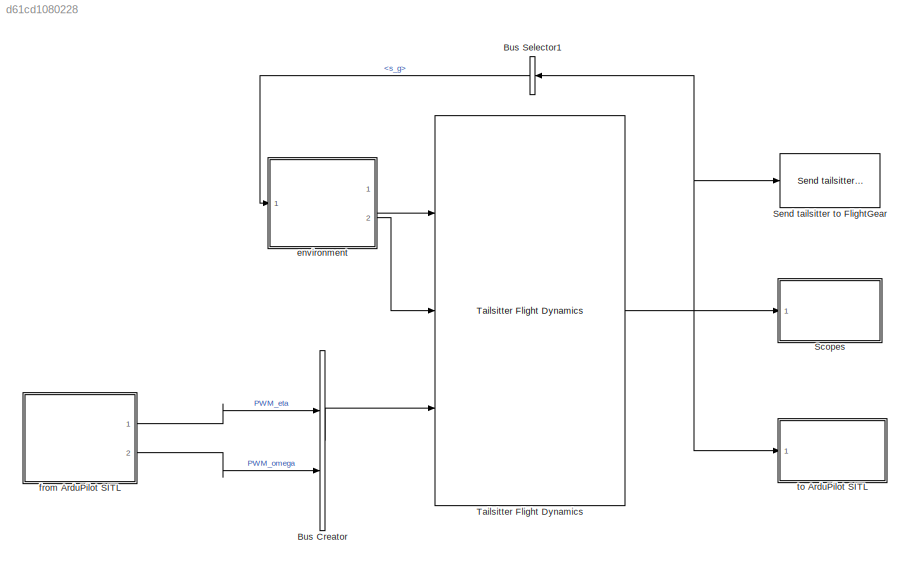
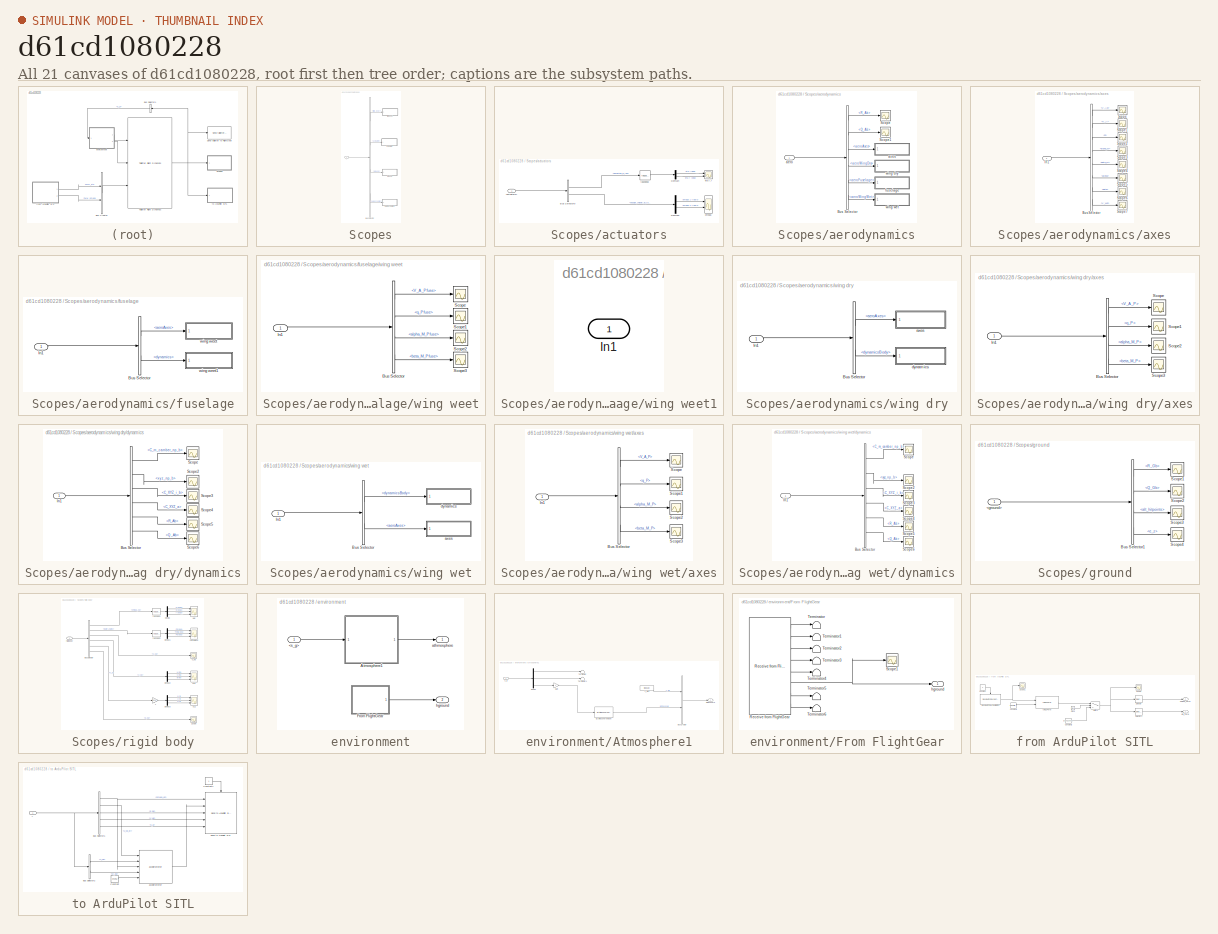
[diagram: thumbnail index - all 21 canvases of the model, root first then tree order]
MODEL slx_d61cd1080228
KIND model
CONFIG AbsTol = auto
CONFIG EnableMultiTasking = on
CONFIG FixedStep = 0.01
CONFIG MaxStep = auto
CONFIG MinStep = auto
CONFIG RelTol = 1e-4
CONFIG SampleTimeConstraint = Unconstrained
CONFIG Solver = ode23
CONFIG SolverName = ode23
CONFIG StartTime = 0
CONFIG StopTime = 1200
BLOCK [BusCreator] Bus Creator
  DisplayOption = bar
  InheritFromInputs = on
  Inputs = 2
  Ports = [2, 1]
BLOCK [BusSelector] Bus Selector1
  OutputAsBus = off
  OutputSignals = rigid_body.s_g
  Ports = [1, 1]
BLOCK [SubSystem] Scopes
  Ports = [1]
  RequestExecContextInheritance = off
BLOCK [BusSelector] Scopes/Bus Selector
  OutputAsBus = off
  OutputSignals = rigid_body,actuators,ground,aerodynamics
  Ports = [1, 4]
BLOCK [SubSystem] Scopes/actuators
  Ports = [1]
  RequestExecContextInheritance = off
BLOCK [Inport] Scopes/actuators/<actuators>
  IconDisplay = Port number
BLOCK [BusSelector] Scopes/actuators/Bus Selector9
  OutputAsBus = off
  OutputSignals = eta_i.deflection_in_rad,angular_velocity_in_rad_per_s
  Ports = [1, 2]
BLOCK [Demux] Scopes/actuators/Demux4
  DisplayOption = bar
  Outputs = 2
  Ports = [1, 2]
BLOCK [Demux] Scopes/actuators/Demux6
  DisplayOption = bar
  Outputs = 2
  Ports = [1, 2]
BLOCK [Scope] Scopes/actuators/eta l,r
  Floating = off
  NumInputPorts = 2
  Ports = [2]
  ScopeSpecificationString = Simulink.scopes.TimeScopeBlockCfg('CurrentConfiguration', extmgr.ConfigurationSet(extmgr.Configuration('Core','General UI',true),extmgr.Configuration('Core','Source UI',true),extmgr.Configuration('Sources','WiredSimulink',true,'DataLoggingVariableName','ScopeEta','DataLogging',true,'DataLoggingSaveFormat','StructureWithTime'),extmgr.Configuration('Visuals','Time Domain',true,'SerializedDisplays',{...<+1529ch>
BLOCK [Scope] Scopes/actuators/omega
  Floating = off
  NumInputPorts = 2
  Ports = [2]
  ScopeSpecificationString = Simulink.scopes.TimeScopeBlockCfg('CurrentConfiguration', extmgr.ConfigurationSet(extmgr.Configuration('Core','General UI',true),extmgr.Configuration('Core','Source UI',true),extmgr.Configuration('Sources','WiredSimulink',true,'DataLoggingVariableName','ScopeOmega','DataLogging',true,'DataLoggingSaveFormat','StructureWithTime'),extmgr.Configuration('Visuals','Time Domain',true,'SerializedDisplays'...<+1626ch>
BLOCK [Reference] Scopes/actuators/rad2deg3  REF=unit_conversions_lib/rad2deg  (lib defined in slx_ae2855d4d91e)
  Ports = [1, 1]
  SourceBlock = unit_conversions_lib/rad2deg
  SourceProductName = LADAC
BLOCK [SubSystem] Scopes/aerodynamics
  Ports = [1]
  RequestExecContextInheritance = off
BLOCK [BusSelector] Scopes/aerodynamics/Bus Selector
  OutputAsBus = off
  OutputSignals = cg aerodynamics.R_Ab,cg aerodynamics.Q_Ab,cg aerodynamics.aeroAxes,local aerodynamic.aeroWingDry,local aerodynamic.aeroFuselage,local aerodynamic.aeroWingWet
  Ports = [1, 6]
BLOCK [Scope] Scopes/aerodynamics/Scope
  Floating = off
  NumInputPorts = 1
  Ports = [1]
  ScopeSpecificationString = Simulink.scopes.TimeScopeBlockCfg('CurrentConfiguration', extmgr.ConfigurationSet(extmgr.Configuration('Core','General UI',true),extmgr.Configuration('Core','Source UI',true),extmgr.Configuration('Sources','WiredSimulink',true,'DataLoggingVariableName','ScopeData1'),extmgr.Configuration('Visuals','Time Domain',true),extmgr.Configuration('Tools','Plot Navigation',true),extmgr.Configuration('Tools',...<+40ch>
BLOCK [Scope] Scopes/aerodynamics/Scope1
  Floating = off
  NumInputPorts = 1
  Ports = [1]
  ScopeSpecificationString = Simulink.scopes.TimeScopeBlockCfg('CurrentConfiguration', extmgr.ConfigurationSet(extmgr.Configuration('Core','General UI',true),extmgr.Configuration('Core','Source UI',true),extmgr.Configuration('Sources','WiredSimulink',true,'DataLoggingVariableName','ScopeData2'),extmgr.Configuration('Visuals','Time Domain',true,'SerializedDisplays',{struct('MinYLimReal','-0.02625','MaxYLimReal','0.05792','YLab...<+1469ch>
BLOCK [Inport] Scopes/aerodynamics/aero
  IconDisplay = Port number
BLOCK [SubSystem] Scopes/aerodynamics/axes
  Ports = [1]
  RequestExecContextInheritance = off
BLOCK [BusSelector] Scopes/aerodynamics/axes/Bus Selector
  OutputAsBus = off
  OutputSignals = V_Ab,V_A,q,alpha_M,beta_M,alpha,beta,V_Wb
  Ports = [1, 8]
BLOCK [Inport] Scopes/aerodynamics/axes/In1
  IconDisplay = Port number
BLOCK [Scope] Scopes/aerodynamics/axes/Scope
  Floating = off
  NumInputPorts = 1
  Ports = [1]
  ScopeSpecificationString = Simulink.scopes.TimeScopeBlockCfg('CurrentConfiguration', extmgr.ConfigurationSet(extmgr.Configuration('Core','General UI',true),extmgr.Configuration('Core','Source UI',true),extmgr.Configuration('Sources','WiredSimulink',true,'DataLoggingVariableName','ScopeData3'),extmgr.Configuration('Visuals','Time Domain',true),extmgr.Configuration('Tools','Plot Navigation',true),extmgr.Configuration('Tools',...<+40ch>
BLOCK [Scope] Scopes/aerodynamics/axes/Scope1
  Floating = off
  NumInputPorts = 1
  Ports = [1]
  ScopeSpecificationString = Simulink.scopes.TimeScopeBlockCfg('CurrentConfiguration', extmgr.ConfigurationSet(extmgr.Configuration('Core','General UI',true),extmgr.Configuration('Core','Source UI',true),extmgr.Configuration('Sources','WiredSimulink',true,'DataLoggingVariableName','ScopeData4'),extmgr.Configuration('Visuals','Time Domain',true,'SerializedDisplays',{struct('MinYLimReal','-2.33732','MaxYLimReal','21.13584','YLa...<+1448ch>
BLOCK [Scope] Scopes/aerodynamics/axes/Scope2
  Floating = off
  NumInputPorts = 1
  Ports = [1]
  ScopeSpecificationString = Simulink.scopes.TimeScopeBlockCfg('CurrentConfiguration', extmgr.ConfigurationSet(extmgr.Configuration('Core','General UI',true),extmgr.Configuration('Core','Source UI',true),extmgr.Configuration('Sources','WiredSimulink',true,'DataLoggingVariableName','ScopeData5'),extmgr.Configuration('Visuals','Time Domain',true),extmgr.Configuration('Tools','Plot Navigation',true),extmgr.Configuration('Tools',...<+40ch>
BLOCK [Scope] Scopes/aerodynamics/axes/Scope3
  Floating = off
  NumInputPorts = 1
  Ports = [1]
  ScopeSpecificationString = Simulink.scopes.TimeScopeBlockCfg('CurrentConfiguration', extmgr.ConfigurationSet(extmgr.Configuration('Core','General UI',true),extmgr.Configuration('Core','Source UI',true),extmgr.Configuration('Sources','WiredSimulink',true,'DataLoggingVariableName','ScopeData6'),extmgr.Configuration('Visuals','Time Domain',true,'SerializedDisplays',{struct('MinYLimReal','-1.49161','MaxYLimReal','0.267','YLabel...<+1444ch>
BLOCK [Scope] Scopes/aerodynamics/axes/Scope4
  Floating = off
  NumInputPorts = 1
  Ports = [1]
  ScopeSpecificationString = Simulink.scopes.TimeScopeBlockCfg('CurrentConfiguration', extmgr.ConfigurationSet(extmgr.Configuration('Core','General UI',true),extmgr.Configuration('Core','Source UI',true),extmgr.Configuration('Sources','WiredSimulink',true,'DataLoggingVariableName','ScopeData7'),extmgr.Configuration('Visuals','Time Domain',true,'SerializedDisplays',{struct('MinYLimReal','-3.64496','MaxYLimReal','1.4306','YLabe...<+1445ch>
BLOCK [Scope] Scopes/aerodynamics/axes/Scope5
  Floating = off
  NumInputPorts = 1
  Ports = [1]
  ScopeSpecificationString = Simulink.scopes.TimeScopeBlockCfg('CurrentConfiguration', extmgr.ConfigurationSet(extmgr.Configuration('Core','General UI',true),extmgr.Configuration('Core','Source UI',true),extmgr.Configuration('Sources','WiredSimulink',true,'DataLoggingVariableName','ScopeData8'),extmgr.Configuration('Visuals','Time Domain',true),extmgr.Configuration('Tools','Plot Navigation',true),extmgr.Configuration('Tools',...<+40ch>
BLOCK [Scope] Scopes/aerodynamics/axes/Scope6
  Floating = off
  NumInputPorts = 1
  Ports = [1]
  ScopeSpecificationString = Simulink.scopes.TimeScopeBlockCfg('CurrentConfiguration', extmgr.ConfigurationSet(extmgr.Configuration('Core','General UI',true),extmgr.Configuration('Core','Source UI',true),extmgr.Configuration('Sources','WiredSimulink',true,'DataLoggingVariableName','ScopeData9'),extmgr.Configuration('Visuals','Time Domain',true),extmgr.Configuration('Tools','Plot Navigation',true),extmgr.Configuration('Tools',...<+40ch>
BLOCK [Scope] Scopes/aerodynamics/axes/Scope7
  Floating = off
  NumInputPorts = 1
  Ports = [1]
  ScopeSpecificationString = Simulink.scopes.TimeScopeBlockCfg('CurrentConfiguration', extmgr.ConfigurationSet(extmgr.Configuration('Core','General UI',true),extmgr.Configuration('Core','Source UI',true),extmgr.Configuration('Sources','WiredSimulink',true,'DataLoggingVariableName','ScopeData10'),extmgr.Configuration('Visuals','Time Domain',true),extmgr.Configuration('Tools','Plot Navigation',true),extmgr.Configuration('Tools'...<+41ch>
BLOCK [SubSystem] Scopes/aerodynamics/fuselage
  Ports = [1]
  RequestExecContextInheritance = off
BLOCK [BusSelector] Scopes/aerodynamics/fuselage/Bus Selector
  OutputAsBus = off
  OutputSignals = aeroAxes,dynamics
  Ports = [1, 2]
BLOCK [Inport] Scopes/aerodynamics/fuselage/In1
  IconDisplay = Port number
BLOCK [SubSystem] Scopes/aerodynamics/fuselage/wing weet
  Ports = [1]
  RequestExecContextInheritance = off
BLOCK [BusSelector] Scopes/aerodynamics/fuselage/wing weet/Bus Selector
  OutputAsBus = off
  OutputSignals = V_A_Pfuse,q_Pfuse,alpha_M_Pfuse,beta_M_Pfuse
  Ports = [1, 4]
BLOCK [Inport] Scopes/aerodynamics/fuselage/wing weet/In1
  IconDisplay = Port number
BLOCK [Scope] Scopes/aerodynamics/fuselage/wing weet/Scope
  Floating = off
  NumInputPorts = 1
  Ports = [1]
  ScopeSpecificationString = Simulink.scopes.TimeScopeBlockCfg('CurrentConfiguration', extmgr.ConfigurationSet(extmgr.Configuration('Core','General UI',true),extmgr.Configuration('Core','Source UI',true),extmgr.Configuration('Sources','WiredSimulink',true,'DataLoggingVariableName','ScopeData33'),extmgr.Configuration('Visuals','Time Domain',true),extmgr.Configuration('Tools','Plot Navigation',true),extmgr.Configuration('Tools'...<+41ch>
BLOCK [Scope] Scopes/aerodynamics/fuselage/wing weet/Scope1
  Floating = off
  NumInputPorts = 1
  Ports = [1]
  ScopeSpecificationString = Simulink.scopes.TimeScopeBlockCfg('CurrentConfiguration', extmgr.ConfigurationSet(extmgr.Configuration('Core','General UI',true),extmgr.Configuration('Core','Source UI',true),extmgr.Configuration('Sources','WiredSimulink',true,'DataLoggingVariableName','ScopeData34'),extmgr.Configuration('Visuals','Time Domain',true),extmgr.Configuration('Tools','Plot Navigation',true),extmgr.Configuration('Tools'...<+41ch>
BLOCK [Scope] Scopes/aerodynamics/fuselage/wing weet/Scope2
  Floating = off
  NumInputPorts = 1
  Ports = [1]
  ScopeSpecificationString = Simulink.scopes.TimeScopeBlockCfg('CurrentConfiguration', extmgr.ConfigurationSet(extmgr.Configuration('Core','General UI',true),extmgr.Configuration('Core','Source UI',true),extmgr.Configuration('Sources','WiredSimulink',true,'DataLoggingVariableName','ScopeData35'),extmgr.Configuration('Visuals','Time Domain',true),extmgr.Configuration('Tools','Plot Navigation',true),extmgr.Configuration('Tools'...<+41ch>
BLOCK [Scope] Scopes/aerodynamics/fuselage/wing weet/Scope3
  Floating = off
  NumInputPorts = 1
  Ports = [1]
  ScopeSpecificationString = Simulink.scopes.TimeScopeBlockCfg('CurrentConfiguration', extmgr.ConfigurationSet(extmgr.Configuration('Core','General UI',true),extmgr.Configuration('Core','Source UI',true),extmgr.Configuration('Sources','WiredSimulink',true,'DataLoggingVariableName','ScopeData36'),extmgr.Configuration('Visuals','Time Domain',true),extmgr.Configuration('Tools','Plot Navigation',true),extmgr.Configuration('Tools'...<+41ch>
BLOCK [SubSystem] Scopes/aerodynamics/fuselage/wing weet1
  Ports = [1]
  RequestExecContextInheritance = off
BLOCK [Inport] Scopes/aerodynamics/fuselage/wing weet1/In1
  IconDisplay = Port number
BLOCK [SubSystem] Scopes/aerodynamics/wing dry
  Ports = [1]
  RequestExecContextInheritance = off
BLOCK [BusSelector] Scopes/aerodynamics/wing dry/Bus Selector
  OutputAsBus = off
  OutputSignals = aeroAxes,dynamicsBody
  Ports = [1, 2]
BLOCK [Inport] Scopes/aerodynamics/wing dry/In1
  IconDisplay = Port number
BLOCK [SubSystem] Scopes/aerodynamics/wing dry/axes
  Ports = [1]
  RequestExecContextInheritance = off
BLOCK [BusSelector] Scopes/aerodynamics/wing dry/axes/Bus Selector
  OutputAsBus = off
  OutputSignals = V_A_P,q_P,alpha_M_P,beta_M_P
  Ports = [1, 4]
BLOCK [Inport] Scopes/aerodynamics/wing dry/axes/In1
  IconDisplay = Port number
BLOCK [Scope] Scopes/aerodynamics/wing dry/axes/Scope
  Floating = off
  NumInputPorts = 1
  Ports = [1]
  ScopeSpecificationString = Simulink.scopes.TimeScopeBlockCfg('CurrentConfiguration', extmgr.ConfigurationSet(extmgr.Configuration('Core','General UI',true),extmgr.Configuration('Core','Source UI',true),extmgr.Configuration('Sources','WiredSimulink',true,'DataLoggingVariableName','ScopeData11'),extmgr.Configuration('Visuals','Time Domain',true),extmgr.Configuration('Tools','Plot Navigation',true),extmgr.Configuration('Tools'...<+41ch>
BLOCK [Scope] Scopes/aerodynamics/wing dry/axes/Scope1
  Floating = off
  NumInputPorts = 1
  Ports = [1]
  ScopeSpecificationString = Simulink.scopes.TimeScopeBlockCfg('CurrentConfiguration', extmgr.ConfigurationSet(extmgr.Configuration('Core','General UI',true),extmgr.Configuration('Core','Source UI',true),extmgr.Configuration('Sources','WiredSimulink',true,'DataLoggingVariableName','ScopeData12'),extmgr.Configuration('Visuals','Time Domain',true,'SerializedDisplays',{struct('MinYLimReal','-27.23614','MaxYLimReal','245.12584','...<+1473ch>
BLOCK [Scope] Scopes/aerodynamics/wing dry/axes/Scope2
  Floating = off
  NumInputPorts = 1
  Ports = [1]
  ScopeSpecificationString = Simulink.scopes.TimeScopeBlockCfg('CurrentConfiguration', extmgr.ConfigurationSet(extmgr.Configuration('Core','General UI',true),extmgr.Configuration('Core','Source UI',true),extmgr.Configuration('Sources','WiredSimulink',true,'DataLoggingVariableName','ScopeData13'),extmgr.Configuration('Visuals','Time Domain',true,'SerializedDisplays',{struct('MinYLimReal','-1.24162','MaxYLimReal','0.8507','YLab...<+1479ch>
BLOCK [Scope] Scopes/aerodynamics/wing dry/axes/Scope3
  Floating = off
  NumInputPorts = 1
  Ports = [1]
  ScopeSpecificationString = Simulink.scopes.TimeScopeBlockCfg('CurrentConfiguration', extmgr.ConfigurationSet(extmgr.Configuration('Core','General UI',true),extmgr.Configuration('Core','Source UI',true),extmgr.Configuration('Sources','WiredSimulink',true,'DataLoggingVariableName','ScopeData14'),extmgr.Configuration('Visuals','Time Domain',true,'SerializedDisplays',{struct('MinYLimReal','-3.71659','MaxYLimReal','2.07513','YLa...<+1503ch>
BLOCK [SubSystem] Scopes/aerodynamics/wing dry/dynamics
  Ports = [1]
  RequestExecContextInheritance = off
BLOCK [BusSelector] Scopes/aerodynamics/wing dry/dynamics/Bus Selector
  OutputAsBus = off
  OutputSignals = C_m_camber_np_b,xyz_np_b,C_XYZ_i_b,C_XYZ_a,R_Ab,Q_Ab
  Ports = [1, 6]
BLOCK [Inport] Scopes/aerodynamics/wing dry/dynamics/In1
  IconDisplay = Port number
BLOCK [Scope] Scopes/aerodynamics/wing dry/dynamics/Scope
  Floating = off
  NumInputPorts = 1
  Ports = [1]
  ScopeSpecificationString = Simulink.scopes.TimeScopeBlockCfg('CurrentConfiguration', extmgr.ConfigurationSet(extmgr.Configuration('Core','General UI',true),extmgr.Configuration('Core','Source UI',true),extmgr.Configuration('Sources','WiredSimulink',true,'DataLoggingVariableName','ScopeData15'),extmgr.Configuration('Visuals','Time Domain',true,'SerializedDisplays',{struct('MinYLimReal','-0.0756','MaxYLimReal','0.07628','YLab...<+1472ch>
BLOCK [Scope] Scopes/aerodynamics/wing dry/dynamics/Scope2
  Floating = off
  NumInputPorts = 1
  Ports = [1]
  ScopeSpecificationString = Simulink.scopes.TimeScopeBlockCfg('CurrentConfiguration', extmgr.ConfigurationSet(extmgr.Configuration('Core','General UI',true),extmgr.Configuration('Core','Source UI',true),extmgr.Configuration('Sources','WiredSimulink',true,'DataLoggingVariableName','ScopeData17'),extmgr.Configuration('Visuals','Time Domain',true,'SerializedDisplays',{struct('MinYLimReal','-0.25','MaxYLimReal','0.25','YLabelRea...<+1539ch>
BLOCK [Scope] Scopes/aerodynamics/wing dry/dynamics/Scope3
  Floating = off
  NumInputPorts = 1
  Ports = [1]
  ScopeSpecificationString = Simulink.scopes.TimeScopeBlockCfg('CurrentConfiguration', extmgr.ConfigurationSet(extmgr.Configuration('Core','General UI',true),extmgr.Configuration('Core','Source UI',true),extmgr.Configuration('Sources','WiredSimulink',true,'DataLoggingVariableName','ScopeData18'),extmgr.Configuration('Visuals','Time Domain',true,'SerializedDisplays',{struct('MinYLimReal','-1.90209','MaxYLimReal','1.86409','YLa...<+1687ch>
BLOCK [Scope] Scopes/aerodynamics/wing dry/dynamics/Scope4
  Floating = off
  NumInputPorts = 1
  Ports = [1]
  ScopeSpecificationString = Simulink.scopes.TimeScopeBlockCfg('CurrentConfiguration', extmgr.ConfigurationSet(extmgr.Configuration('Core','General UI',true),extmgr.Configuration('Core','Source UI',true),extmgr.Configuration('Sources','WiredSimulink',true,'DataLoggingVariableName','ScopeData19'),extmgr.Configuration('Visuals','Time Domain',true,'SerializedDisplays',{struct('MinYLimReal','-1.41165','MaxYLimReal','1.20297','YLa...<+1521ch>
BLOCK [Scope] Scopes/aerodynamics/wing dry/dynamics/Scope5
  Floating = off
  NumInputPorts = 1
  Ports = [1]
  ScopeSpecificationString = Simulink.scopes.TimeScopeBlockCfg('CurrentConfiguration', extmgr.ConfigurationSet(extmgr.Configuration('Core','General UI',true),extmgr.Configuration('Core','Source UI',true),extmgr.Configuration('Sources','WiredSimulink',true,'DataLoggingVariableName','ScopeData20'),extmgr.Configuration('Visuals','Time Domain',true,'SerializedDisplays',{struct('MinYLimReal','-26.52583','MaxYLimReal','26.49284','Y...<+1495ch>
BLOCK [Scope] Scopes/aerodynamics/wing dry/dynamics/Scope6
  Floating = off
  NumInputPorts = 1
  Ports = [1]
  ScopeSpecificationString = Simulink.scopes.TimeScopeBlockCfg('CurrentConfiguration', extmgr.ConfigurationSet(extmgr.Configuration('Core','General UI',true),extmgr.Configuration('Core','Source UI',true),extmgr.Configuration('Sources','WiredSimulink',true,'DataLoggingVariableName','ScopeData21'),extmgr.Configuration('Visuals','Time Domain',true,'SerializedDisplays',{struct('MinYLimReal','-0.01526','MaxYLimReal','0.02139','YLa...<+1516ch>
BLOCK [SubSystem] Scopes/aerodynamics/wing wet
  Ports = [1]
  RequestExecContextInheritance = off
BLOCK [BusSelector] Scopes/aerodynamics/wing wet/Bus Selector
  OutputAsBus = off
  OutputSignals = dynamicsBody,aeroAxes
  Ports = [1, 2]
BLOCK [Inport] Scopes/aerodynamics/wing wet/In1
  IconDisplay = Port number
BLOCK [SubSystem] Scopes/aerodynamics/wing wet/axes
  Ports = [1]
  RequestExecContextInheritance = off
BLOCK [BusSelector] Scopes/aerodynamics/wing wet/axes/Bus Selector
  OutputAsBus = off
  OutputSignals = V_A_P,q_P,alpha_M_P,beta_M_P
  Ports = [1, 4]
BLOCK [Inport] Scopes/aerodynamics/wing wet/axes/In1
  IconDisplay = Port number
BLOCK [Scope] Scopes/aerodynamics/wing wet/axes/Scope
  Floating = off
  NumInputPorts = 1
  Ports = [1]
  ScopeSpecificationString = Simulink.scopes.TimeScopeBlockCfg('CurrentConfiguration', extmgr.ConfigurationSet(extmgr.Configuration('Core','General UI',true),extmgr.Configuration('Core','Source UI',true),extmgr.Configuration('Sources','WiredSimulink',true,'DataLoggingVariableName','ScopeData22'),extmgr.Configuration('Visuals','Time Domain',true,'SerializedDisplays',{struct('MinYLimReal','-4.99035','MaxYLimReal','45.01311','YL...<+1490ch>
BLOCK [Scope] Scopes/aerodynamics/wing wet/axes/Scope1
  Floating = off
  NumInputPorts = 1
  Ports = [1]
  ScopeSpecificationString = Simulink.scopes.TimeScopeBlockCfg('CurrentConfiguration', extmgr.ConfigurationSet(extmgr.Configuration('Core','General UI',true),extmgr.Configuration('Core','Source UI',true),extmgr.Configuration('Sources','WiredSimulink',true,'DataLoggingVariableName','ScopeData23'),extmgr.Configuration('Visuals','Time Domain',true,'SerializedDisplays',{struct('MinYLimReal','-205.62769','MaxYLimReal','1850.64984'...<+1481ch>
BLOCK [Scope] Scopes/aerodynamics/wing wet/axes/Scope2
  Floating = off
  NumInputPorts = 1
  Ports = [1]
  ScopeSpecificationString = Simulink.scopes.TimeScopeBlockCfg('CurrentConfiguration', extmgr.ConfigurationSet(extmgr.Configuration('Core','General UI',true),extmgr.Configuration('Core','Source UI',true),extmgr.Configuration('Sources','WiredSimulink',true,'DataLoggingVariableName','ScopeData24'),extmgr.Configuration('Visuals','Time Domain',true,'SerializedDisplays',{struct('MinYLimReal','-0.1538','MaxYLimReal','0.21391','YLab...<+1503ch>
BLOCK [Scope] Scopes/aerodynamics/wing wet/axes/Scope3
  Floating = off
  NumInputPorts = 1
  Ports = [1]
  ScopeSpecificationString = Simulink.scopes.TimeScopeBlockCfg('CurrentConfiguration', extmgr.ConfigurationSet(extmgr.Configuration('Core','General UI',true),extmgr.Configuration('Core','Source UI',true),extmgr.Configuration('Sources','WiredSimulink',true,'DataLoggingVariableName','ScopeData25'),extmgr.Configuration('Visuals','Time Domain',true,'SerializedDisplays',{struct('MinYLimReal','-3.61249','MaxYLimReal','1.11592','YLa...<+1484ch>
BLOCK [SubSystem] Scopes/aerodynamics/wing wet/dynamics
  Ports = [1]
  RequestExecContextInheritance = off
BLOCK [BusSelector] Scopes/aerodynamics/wing wet/dynamics/Bus Selector
  OutputAsBus = off
  OutputSignals = C_m_camber_np_b,xyz_np_b,C_XYZ_i_b,C_XYZ_a,R_Ab,Q_Ab
  Ports = [1, 6]
BLOCK [Inport] Scopes/aerodynamics/wing wet/dynamics/In1
  IconDisplay = Port number
BLOCK [Scope] Scopes/aerodynamics/wing wet/dynamics/Scope
  Floating = off
  NumInputPorts = 1
  Ports = [1]
  ScopeSpecificationString = Simulink.scopes.TimeScopeBlockCfg('CurrentConfiguration', extmgr.ConfigurationSet(extmgr.Configuration('Core','General UI',true),extmgr.Configuration('Core','Source UI',true),extmgr.Configuration('Sources','WiredSimulink',true,'DataLoggingVariableName','ScopeData26'),extmgr.Configuration('Visuals','Time Domain',true,'SerializedDisplays',{struct('MinYLimReal','-0.07689','MaxYLimReal','0.07665','YLa...<+1474ch>
BLOCK [Scope] Scopes/aerodynamics/wing wet/dynamics/Scope2
  Floating = off
  NumInputPorts = 1
  Ports = [1]
  ScopeSpecificationString = Simulink.scopes.TimeScopeBlockCfg('CurrentConfiguration', extmgr.ConfigurationSet(extmgr.Configuration('Core','General UI',true),extmgr.Configuration('Core','Source UI',true),extmgr.Configuration('Sources','WiredSimulink',true,'DataLoggingVariableName','ScopeData28'),extmgr.Configuration('Visuals','Time Domain',true,'SerializedDisplays',{struct('MinYLimReal','-0.25','MaxYLimReal','0.25','YLabelRea...<+1528ch>
BLOCK [Scope] Scopes/aerodynamics/wing wet/dynamics/Scope3
  Floating = off
  NumInputPorts = 1
  Ports = [1]
  ScopeSpecificationString = Simulink.scopes.TimeScopeBlockCfg('CurrentConfiguration', extmgr.ConfigurationSet(extmgr.Configuration('Core','General UI',true),extmgr.Configuration('Core','Source UI',true),extmgr.Configuration('Sources','WiredSimulink',true,'DataLoggingVariableName','ScopeData29'),extmgr.Configuration('Visuals','Time Domain',true,'SerializedDisplays',{struct('MinYLimReal','-0.99924','MaxYLimReal','0.73023','YLa...<+1563ch>
BLOCK [Scope] Scopes/aerodynamics/wing wet/dynamics/Scope4
  Floating = off
  NumInputPorts = 1
  Ports = [1]
  ScopeSpecificationString = Simulink.scopes.TimeScopeBlockCfg('CurrentConfiguration', extmgr.ConfigurationSet(extmgr.Configuration('Core','General UI',true),extmgr.Configuration('Core','Source UI',true),extmgr.Configuration('Sources','WiredSimulink',true,'DataLoggingVariableName','ScopeData30'),extmgr.Configuration('Visuals','Time Domain',true),extmgr.Configuration('Tools','Plot Navigation',true),extmgr.Configuration('Tools'...<+41ch>
BLOCK [Scope] Scopes/aerodynamics/wing wet/dynamics/Scope5
  Floating = off
  NumInputPorts = 1
  Ports = [1]
  ScopeSpecificationString = Simulink.scopes.TimeScopeBlockCfg('CurrentConfiguration', extmgr.ConfigurationSet(extmgr.Configuration('Core','General UI',true),extmgr.Configuration('Core','Source UI',true),extmgr.Configuration('Sources','WiredSimulink',true,'DataLoggingVariableName','ScopeData31'),extmgr.Configuration('Visuals','Time Domain',true,'SerializedDisplays',{struct('MinYLimReal','-0.28527','MaxYLimReal','0.1656','YLab...<+1468ch>
BLOCK [Scope] Scopes/aerodynamics/wing wet/dynamics/Scope6
  Floating = off
  NumInputPorts = 1
  Ports = [1]
  ScopeSpecificationString = Simulink.scopes.TimeScopeBlockCfg('CurrentConfiguration', extmgr.ConfigurationSet(extmgr.Configuration('Core','General UI',true),extmgr.Configuration('Core','Source UI',true),extmgr.Configuration('Sources','WiredSimulink',true,'DataLoggingVariableName','ScopeData32'),extmgr.Configuration('Visuals','Time Domain',true,'SerializedDisplays',{struct('MinYLimReal','-0.00864','MaxYLimReal','0.0145','YLab...<+1497ch>
BLOCK [SubSystem] Scopes/ground
  Ports = [1]
  RequestExecContextInheritance = off
BLOCK [Inport] Scopes/ground/<ground>
  IconDisplay = Port number
BLOCK [BusSelector] Scopes/ground/Bus Selector1
  Commented = on
  OutputAsBus = off
  OutputSignals = R_Gb,Q_Gb,alt_hitpoints,e_z
  Ports = [1, 4]
BLOCK [Scope] Scopes/ground/Scope1
  Commented = on
  Floating = off
  NumInputPorts = 1
  Ports = [1]
  ScopeSpecificationString = Simulink.scopes.TimeScopeBlockCfg('CurrentConfiguration', extmgr.ConfigurationSet(extmgr.Configuration('Core','General UI',true),extmgr.Configuration('Core','Source UI',true),extmgr.Configuration('Sources','WiredSimulink',true,'DataLoggingVariableName','ScopeData6'),extmgr.Configuration('Visuals','Time Domain',true),extmgr.Configuration('Tools','Plot Navigation',true),extmgr.Configuration('Tools',...<+40ch>
BLOCK [Scope] Scopes/ground/Scope2
  Commented = on
  Floating = off
  NumInputPorts = 1
  Ports = [1]
  ScopeSpecificationString = Simulink.scopes.TimeScopeBlockCfg('CurrentConfiguration', extmgr.ConfigurationSet(extmgr.Configuration('Core','General UI',true),extmgr.Configuration('Core','Source UI',true),extmgr.Configuration('Sources','WiredSimulink',true,'DataLoggingVariableName','ScopeData7'),extmgr.Configuration('Visuals','Time Domain',true),extmgr.Configuration('Tools','Plot Navigation',true),extmgr.Configuration('Tools',...<+40ch>
BLOCK [Scope] Scopes/ground/Scope3
  Commented = on
  Floating = off
  NumInputPorts = 1
  Ports = [1]
  ScopeSpecificationString = Simulink.scopes.TimeScopeBlockCfg('CurrentConfiguration', extmgr.ConfigurationSet(extmgr.Configuration('Core','General UI',true),extmgr.Configuration('Core','Source UI',true),extmgr.Configuration('Sources','WiredSimulink',true,'DataLoggingVariableName','ScopeData8'),extmgr.Configuration('Visuals','Time Domain',true,'SerializedDisplays',{struct('MinYLimReal','-0.11268','MaxYLimReal','0.57088','YLab...<+1616ch>
BLOCK [Scope] Scopes/ground/Scope4
  Commented = on
  Floating = off
  NumInputPorts = 1
  Ports = [1]
  ScopeSpecificationString = Simulink.scopes.TimeScopeBlockCfg('CurrentConfiguration', extmgr.ConfigurationSet(extmgr.Configuration('Core','General UI',true),extmgr.Configuration('Core','Source UI',true),extmgr.Configuration('Sources','WiredSimulink',true,'DataLoggingVariableName','ScopeData9'),extmgr.Configuration('Visuals','Time Domain',true,'SerializedDisplays',{struct('MinYLimReal','-0.00094','MaxYLimReal','0.0085','YLabe...<+1552ch>
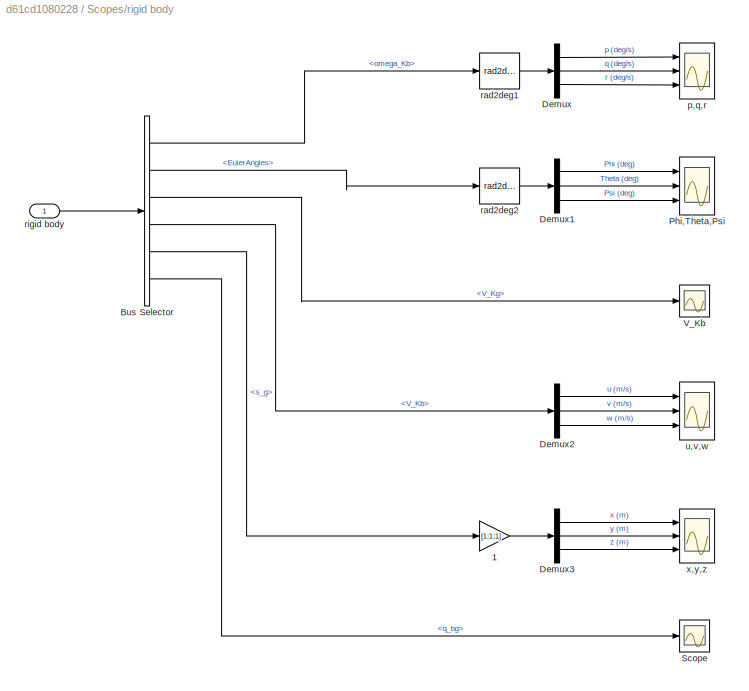
BLOCK [SubSystem] Scopes/rigid body
  Ports = [1]
  RequestExecContextInheritance = off
BLOCK [Gain] Scopes/rigid body/1
  Gain = [1;1;1]
  OutDataTypeStr = Inherit: Inherit via internal rule
  ParamDataTypeStr = Inherit: Inherit via internal rule
  SaturateOnIntegerOverflow = off
BLOCK [BusSelector] Scopes/rigid body/Bus Selector
  OutputAsBus = off
  OutputSignals = omega_Kb,EulerAngles,V_Kg,V_Kb,s_g,q_bg
  Ports = [1, 6]
BLOCK [Demux] Scopes/rigid body/Demux
  DisplayOption = bar
  Outputs = 3
  Ports = [1, 3]
BLOCK [Demux] Scopes/rigid body/Demux1
  DisplayOption = bar
  Outputs = 3
  Ports = [1, 3]
BLOCK [Demux] Scopes/rigid body/Demux2
  DisplayOption = bar
  Outputs = 3
  Ports = [1, 3]
BLOCK [Demux] Scopes/rigid body/Demux3
  DisplayOption = bar
  Outputs = 3
  Ports = [1, 3]
BLOCK [Scope] Scopes/rigid body/Phi,Theta,Psi
  Floating = off
  NumInputPorts = 3
  Ports = [3]
  ScopeSpecificationString = Simulink.scopes.TimeScopeBlockCfg('CurrentConfiguration', extmgr.ConfigurationSet(extmgr.Configuration('Core','General UI',true),extmgr.Configuration('Core','Source UI',true),extmgr.Configuration('Sources','WiredSimulink',true,'DataLoggingVariableName','ScopeAngles','DataLogging',true,'DataLoggingSaveFormat','StructureWithTime'),extmgr.Configuration('Visuals','Time Domain',true,'SerializedDisplays...<+1932ch>
BLOCK [Scope] Scopes/rigid body/Scope
  Floating = off
  NumInputPorts = 1
  Ports = [1]
  ScopeSpecificationString = Simulink.scopes.TimeScopeBlockCfg('CurrentConfiguration', extmgr.ConfigurationSet(extmgr.Configuration('Core','General UI',true),extmgr.Configuration('Core','Source UI',true),extmgr.Configuration('Sources','WiredSimulink',true,'DataLoggingVariableName','ScopeData1'),extmgr.Configuration('Visuals','Time Domain',true,'SerializedDisplays',{struct('MinYLimReal','-1.19411','MaxYLimReal','1.24363','YLab...<+1445ch>
BLOCK [Scope] Scopes/rigid body/V_Kb
  Floating = off
  NumInputPorts = 1
  Ports = [1]
  ScopeSpecificationString = Simulink.scopes.TimeScopeBlockCfg('CurrentConfiguration', extmgr.ConfigurationSet(extmgr.Configuration('Core','General UI',true),extmgr.Configuration('Core','Source UI',true),extmgr.Configuration('Sources','WiredSimulink',true,'DataLoggingVariableName','ScopeData1'),extmgr.Configuration('Visuals','Time Domain',true,'SerializedDisplays',{struct('MinYLimReal','-7.43743','MaxYLimReal','11.1093','YLab...<+1497ch>
BLOCK [Scope] Scopes/rigid body/p,q,r
  Floating = off
  NumInputPorts = 3
  Ports = [3]
  ScopeSpecificationString = Simulink.scopes.TimeScopeBlockCfg('CurrentConfiguration', extmgr.ConfigurationSet(extmgr.Configuration('Core','General UI',true),extmgr.Configuration('Core','Source UI',true),extmgr.Configuration('Sources','WiredSimulink',true,'DataLogging',true,'DataLoggingVariableName','ScopeRates','DataLoggingSaveFormat','StructureWithTime'),extmgr.Configuration('Visuals','Time Domain',true,'SerializedDisplays'...<+1686ch>
BLOCK [Reference] Scopes/rigid body/rad2deg1  REF=unit_conversions_lib/rad2deg  (lib defined in slx_ae2855d4d91e)
  Ports = [1, 1]
  SourceBlock = unit_conversions_lib/rad2deg
  SourceProductName = LADAC
BLOCK [Reference] Scopes/rigid body/rad2deg2  REF=unit_conversions_lib/rad2deg  (lib defined in slx_ae2855d4d91e)
  Ports = [1, 1]
  SourceBlock = unit_conversions_lib/rad2deg
  SourceProductName = LADAC
BLOCK [Inport] Scopes/rigid body/rigid body
  IconDisplay = Port number
BLOCK [Scope] Scopes/rigid body/u,v,w
  Floating = off
  NumInputPorts = 3
  Ports = [3]
  ScopeSpecificationString = Simulink.scopes.TimeScopeBlockCfg('CurrentConfiguration', extmgr.ConfigurationSet(extmgr.Configuration('Core','General UI',true),extmgr.Configuration('Core','Source UI',true),extmgr.Configuration('Sources','WiredSimulink',true,'DataLoggingVariableName','ScopeV_Kg','DataLogging',true,'DataLoggingSaveFormat','StructureWithTime'),extmgr.Configuration('Visuals','Time Domain',true,'SerializedDisplays',...<+1564ch>
BLOCK [Scope] Scopes/rigid body/x,y,z
  Floating = off
  NumInputPorts = 3
  Ports = [3]
  ScopeSpecificationString = Simulink.scopes.TimeScopeBlockCfg('CurrentConfiguration', extmgr.ConfigurationSet(extmgr.Configuration('Core','General UI',true),extmgr.Configuration('Core','Source UI',true),extmgr.Configuration('Sources','WiredSimulink',true,'DataLoggingVariableName','ScopePosition','DataLogging',true,'DataLoggingSaveFormat','StructureWithTime'),extmgr.Configuration('Visuals','Time Domain',true,'SerializedDispla...<+1575ch>
BLOCK [Inport] Scopes/y
  IconDisplay = Port number
BLOCK [Reference] Send tailsitter to FlightGear  REF=tailsitter_lib/Send tailsitter to FlightGear  (lib defined in slx_84bbf5c517da)
  Ports = [1]
  SourceBlock = tailsitter_lib/Send tailsitter to FlightGear
  SourceProductName = LADAC
BLOCK [Reference] Tailsitter Flight Dynamics  REF=tailsitter_lib/Tailsitter Flight Dynamics  (lib defined in slx_84bbf5c517da)
  Ports = [3, 1]
  SourceBlock = tailsitter_lib/Tailsitter Flight Dynamics
  SourceProductName = LADAC
BLOCK [SubSystem] environment
  Ports = [1, 2]
  RequestExecContextInheritance = off
BLOCK [Inport] environment/<s_g>
  IconDisplay = Port number
BLOCK [SubSystem] environment/Atmosphere1
  Ports = [1, 1]
  RequestExecContextInheritance = off
BLOCK [BusCreator] environment/Atmosphere1/Bus Creator
  DisplayOption = bar
  InheritFromInputs = on
  Inputs = 2
  Ports = [2, 1]
BLOCK [Demux] environment/Atmosphere1/Demux
  DisplayOption = bar
  Outputs = 3
  Ports = [1, 3]
BLOCK [Gain] environment/Atmosphere1/Gain
  Gain = -1
  OutDataTypeStr = Inherit: Inherit via internal rule
  ParamDataTypeStr = Inherit: Inherit via internal rule
  SaturateOnIntegerOverflow = off
BLOCK [Reference] environment/Atmosphere1/ISA Atmosphere Model  REF=atmosphere_lib/ISA Atmosphere Model  (lib defined in slx_398a0eb2fa35)
  Ports = [1, 1]
  SourceBlock = atmosphere_lib/ISA Atmosphere Model
  SourceProductName = LADAC
  SourceType = SubSystem
BLOCK [Terminator] environment/Atmosphere1/Terminator
BLOCK [Terminator] environment/Atmosphere1/Terminator1
BLOCK [Constant] environment/Atmosphere1/V_Wg2
  Value = [0;0.01;0]
BLOCK [Outport] environment/Atmosphere1/atmosphere
  IconDisplay = Port number
BLOCK [Inport] environment/Atmosphere1/s_g
  IconDisplay = Port number
BLOCK [SubSystem] environment/From FlightGear
  Ports = [0, 1]
  RequestExecContextInheritance = off
BLOCK [Reference] environment/From FlightGear/Receive from FlightGear  REF=flightgear_visualization_lib/Receive from FlightGear  (lib defined in slx_722f04e3a3fc)
  Ports = [0, 8]
  SourceBlock = flightgear_visualization_lib/Receive from FlightGear
  SourceProductName = LADAC
BLOCK [Scope] environment/From FlightGear/Scope1
  Floating = off
  NumInputPorts = 1
  Ports = [1]
  ScopeSpecificationString = Simulink.scopes.TimeScopeBlockCfg('CurrentConfiguration', extmgr.ConfigurationSet(extmgr.Configuration('Core','General UI',true),extmgr.Configuration('Core','Source UI',true),extmgr.Configuration('Sources','WiredSimulink',true,'DataLoggingVariableName','ScopeData6'),extmgr.Configuration('Visuals','Time Domain',true,'SerializedDisplays',{struct('MinYLimReal','4.81965','MaxYLimReal','6.85539','YLabe...<+1507ch>
BLOCK [Terminator] environment/From FlightGear/Terminator
BLOCK [Terminator] environment/From FlightGear/Terminator1
BLOCK [Terminator] environment/From FlightGear/Terminator2
BLOCK [Terminator] environment/From FlightGear/Terminator3
BLOCK [Terminator] environment/From FlightGear/Terminator4
BLOCK [Terminator] environment/From FlightGear/Terminator5
BLOCK [Terminator] environment/From FlightGear/Terminator6
BLOCK [Outport] environment/From FlightGear/hground
  IconDisplay = Port number
BLOCK [Outport] environment/athmosphere
  IconDisplay = Port number
BLOCK [Outport] environment/hground
  IconDisplay = Port number
  Port = 2
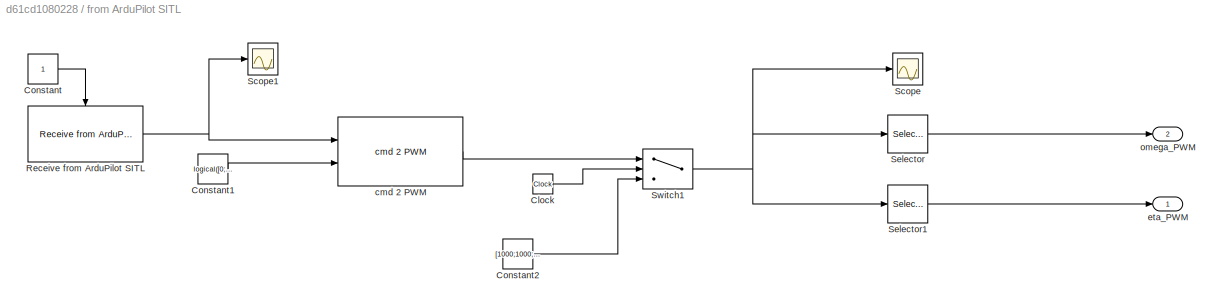
BLOCK [SubSystem] from ArduPilot SITL
  Ports = [0, 2]
  RequestExecContextInheritance = off
BLOCK [Clock] from ArduPilot SITL/Clock
BLOCK [Constant] from ArduPilot SITL/Constant
  OutDataTypeStr = boolean
BLOCK [Constant] from ArduPilot SITL/Constant1
  Value = logical([0;0;0;1])
BLOCK [Constant] from ArduPilot SITL/Constant2
  Value = [1000;1000;1500;1500]
BLOCK [Reference] from ArduPilot SITL/Receive from ArduPilot SITL  REF=ardupilot_sitl_lib/Receive from ArduPilot SITL  (lib defined in slx_448b01335727)
  Ports = [0, 1, 1]
  SourceBlock = ardupilot_sitl_lib/Receive from ArduPilot SITL
  SourceProductName = LADAC
BLOCK [Scope] from ArduPilot SITL/Scope
  Floating = off
  NumInputPorts = 1
  Ports = [1]
  ScopeSpecificationString = Simulink.scopes.TimeScopeBlockCfg('CurrentConfiguration', extmgr.ConfigurationSet(extmgr.Configuration('Core','General UI',true),extmgr.Configuration('Core','Source UI',true),extmgr.Configuration('Sources','WiredSimulink',true,'DataLoggingVariableName','ScopeData1'),extmgr.Configuration('Visuals','Time Domain',true,'SerializedDisplays',{struct('MinYLimReal','875.00000','MaxYLimReal','2125.00000','...<+1645ch>
BLOCK [Scope] from ArduPilot SITL/Scope1
  Floating = off
  NumInputPorts = 1
  Ports = [1]
  ScopeSpecificationString = Simulink.scopes.TimeScopeBlockCfg('CurrentConfiguration', extmgr.ConfigurationSet(extmgr.Configuration('Core','General UI',true),extmgr.Configuration('Core','Source UI',true),extmgr.Configuration('Sources','WiredSimulink',true,'DataLoggingVariableName','ScopeData1'),extmgr.Configuration('Visuals','Time Domain',true,'SerializedDisplays',{struct('MinYLimReal','-0.08125','MaxYLimReal','0.73125','YLab...<+1598ch>
BLOCK [Selector] from ArduPilot SITL/Selector
  IndexOptions = Index vector (dialog)
  Indices = [1,2]
  InputPortWidth = 4
  OutputSizes = 1
  Ports = [1, 1]
BLOCK [Selector] from ArduPilot SITL/Selector1
  IndexOptions = Index vector (dialog)
  Indices = [3,4]
  InputPortWidth = 4
  OutputSizes = 1
  Ports = [1, 1]
BLOCK [Switch] from ArduPilot SITL/Switch1
  Criteria = u2 > Threshold
  InputSameDT = off
  SaturateOnIntegerOverflow = off
  Threshold = 15
BLOCK [Reference] from ArduPilot SITL/cmd 2 PWM  REF=actuators_lib/cmd 2 PWM  (lib defined in slx_c2decc952d1f)
  Ports = [2, 1]
  SourceBlock = actuators_lib/cmd 2 PWM
  SourceProductName = LADAC
  SourceType = SubSystem
BLOCK [Outport] from ArduPilot SITL/eta_PWM
  IconDisplay = Port number
BLOCK [Outport] from ArduPilot SITL/omega_PWM
  IconDisplay = Port number
  Port = 2
BLOCK [SubSystem] to ArduPilot SITL
  Ports = [1]
  RequestExecContextInheritance = off
BLOCK [BusSelector] to ArduPilot SITL/Bus Selector1
  OutputAsBus = off
  OutputSignals = rigid_body.omega_Kb,rigid_body.V_Kb_dt,rigid_body.q_bg,rigid_body.V_Kg,rigid_body.s_g
  Ports = [1, 5]
BLOCK [BusSelector] to ArduPilot SITL/Bus Selector2
  OutputAsBus = off
  OutputSignals = rigid_body.V_Kb,rigid_body.M_bg
  Ports = [1, 2]
BLOCK [Constant] to ArduPilot SITL/Constant
  Value = envir.g
BLOCK [Constant] to ArduPilot SITL/Constant1
  OutDataTypeStr = boolean
BLOCK [Reference] to ArduPilot SITL/Send to ArduPilot SITL  REF=ardupilot_sitl_lib/Send to ArduPilot SITL  (lib defined in slx_448b01335727)
  Ports = [5, 0, 1]
  SourceBlock = ardupilot_sitl_lib/Send to ArduPilot SITL
  SourceProductName = LADAC
BLOCK [Reference] to ArduPilot SITL/accelerometer  REF=sensors_lib/accelerometer  (lib defined in mdl_052e9be48c24, mdl_88e42053cf8c, +1 more)
  Ports = [5, 1]
  SourceBlock = sensors_lib/accelerometer
  SourceProductName = LADAC
  SourceType = SubSystem
BLOCK [Inport] to ArduPilot SITL/y
  IconDisplay = Port number
LINE Bus Creator:1 -> Tailsitter Flight Dynamics:3
LINE Bus Selector1:1 -> environment:1
LINE Scopes/Bus Selector:1 -> Scopes/rigid body:1
LINE Scopes/Bus Selector:2 -> Scopes/actuators:1
LINE Scopes/Bus Selector:3 -> Scopes/ground:1
LINE Scopes/Bus Selector:4 -> Scopes/aerodynamics:1
LINE Scopes/actuators/<actuators>:1 -> Scopes/actuators/Bus Selector9:1
LINE Scopes/actuators/Bus Selector9:1 -> Scopes/actuators/rad2deg3:1
LINE Scopes/actuators/Bus Selector9:2 -> Scopes/actuators/Demux6:1
LINE Scopes/actuators/Demux4:1 -> Scopes/actuators/eta l,r:1
LINE Scopes/actuators/Demux4:2 -> Scopes/actuators/eta l,r:2
LINE Scopes/actuators/Demux6:1 -> Scopes/actuators/omega:1
LINE Scopes/actuators/Demux6:2 -> Scopes/actuators/omega:2
LINE Scopes/actuators/rad2deg3:1 -> Scopes/actuators/Demux4:1
LINE Scopes/aerodynamics/Bus Selector:1 -> Scopes/aerodynamics/Scope:1
LINE Scopes/aerodynamics/Bus Selector:2 -> Scopes/aerodynamics/Scope1:1
LINE Scopes/aerodynamics/Bus Selector:3 -> Scopes/aerodynamics/axes:1
LINE Scopes/aerodynamics/Bus Selector:4 -> Scopes/aerodynamics/wing dry:1
LINE Scopes/aerodynamics/Bus Selector:5 -> Scopes/aerodynamics/fuselage:1
LINE Scopes/aerodynamics/Bus Selector:6 -> Scopes/aerodynamics/wing wet:1
LINE Scopes/aerodynamics/aero:1 -> Scopes/aerodynamics/Bus Selector:1
LINE Scopes/aerodynamics/axes/Bus Selector:1 -> Scopes/aerodynamics/axes/Scope:1
LINE Scopes/aerodynamics/axes/Bus Selector:2 -> Scopes/aerodynamics/axes/Scope1:1
LINE Scopes/aerodynamics/axes/Bus Selector:3 -> Scopes/aerodynamics/axes/Scope2:1
LINE Scopes/aerodynamics/axes/Bus Selector:4 -> Scopes/aerodynamics/axes/Scope3:1
LINE Scopes/aerodynamics/axes/Bus Selector:5 -> Scopes/aerodynamics/axes/Scope4:1
LINE Scopes/aerodynamics/axes/Bus Selector:6 -> Scopes/aerodynamics/axes/Scope5:1
LINE Scopes/aerodynamics/axes/Bus Selector:7 -> Scopes/aerodynamics/axes/Scope6:1
LINE Scopes/aerodynamics/axes/Bus Selector:8 -> Scopes/aerodynamics/axes/Scope7:1
LINE Scopes/aerodynamics/axes/In1:1 -> Scopes/aerodynamics/axes/Bus Selector:1
LINE Scopes/aerodynamics/fuselage/Bus Selector:1 -> Scopes/aerodynamics/fuselage/wing weet:1
LINE Scopes/aerodynamics/fuselage/Bus Selector:2 -> Scopes/aerodynamics/fuselage/wing weet1:1
LINE Scopes/aerodynamics/fuselage/In1:1 -> Scopes/aerodynamics/fuselage/Bus Selector:1
LINE Scopes/aerodynamics/fuselage/wing weet/Bus Selector:1 -> Scopes/aerodynamics/fuselage/wing weet/Scope:1
LINE Scopes/aerodynamics/fuselage/wing weet/Bus Selector:2 -> Scopes/aerodynamics/fuselage/wing weet/Scope1:1
LINE Scopes/aerodynamics/fuselage/wing weet/Bus Selector:3 -> Scopes/aerodynamics/fuselage/wing weet/Scope2:1
LINE Scopes/aerodynamics/fuselage/wing weet/Bus Selector:4 -> Scopes/aerodynamics/fuselage/wing weet/Scope3:1
LINE Scopes/aerodynamics/fuselage/wing weet/In1:1 -> Scopes/aerodynamics/fuselage/wing weet/Bus Selector:1
LINE Scopes/aerodynamics/wing dry/Bus Selector:1 -> Scopes/aerodynamics/wing dry/axes:1
LINE Scopes/aerodynamics/wing dry/Bus Selector:2 -> Scopes/aerodynamics/wing dry/dynamics:1
LINE Scopes/aerodynamics/wing dry/In1:1 -> Scopes/aerodynamics/wing dry/Bus Selector:1
LINE Scopes/aerodynamics/wing dry/axes/Bus Selector:1 -> Scopes/aerodynamics/wing dry/axes/Scope:1
LINE Scopes/aerodynamics/wing dry/axes/Bus Selector:2 -> Scopes/aerodynamics/wing dry/axes/Scope1:1
LINE Scopes/aerodynamics/wing dry/axes/Bus Selector:3 -> Scopes/aerodynamics/wing dry/axes/Scope2:1
LINE Scopes/aerodynamics/wing dry/axes/Bus Selector:4 -> Scopes/aerodynamics/wing dry/axes/Scope3:1
LINE Scopes/aerodynamics/wing dry/axes/In1:1 -> Scopes/aerodynamics/wing dry/axes/Bus Selector:1
LINE Scopes/aerodynamics/wing dry/dynamics/Bus Selector:1 -> Scopes/aerodynamics/wing dry/dynamics/Scope:1
LINE Scopes/aerodynamics/wing dry/dynamics/Bus Selector:2 -> Scopes/aerodynamics/wing dry/dynamics/Scope2:1
LINE Scopes/aerodynamics/wing dry/dynamics/Bus Selector:3 -> Scopes/aerodynamics/wing dry/dynamics/Scope3:1
LINE Scopes/aerodynamics/wing dry/dynamics/Bus Selector:4 -> Scopes/aerodynamics/wing dry/dynamics/Scope4:1
LINE Scopes/aerodynamics/wing dry/dynamics/Bus Selector:5 -> Scopes/aerodynamics/wing dry/dynamics/Scope5:1
LINE Scopes/aerodynamics/wing dry/dynamics/Bus Selector:6 -> Scopes/aerodynamics/wing dry/dynamics/Scope6:1
LINE Scopes/aerodynamics/wing dry/dynamics/In1:1 -> Scopes/aerodynamics/wing dry/dynamics/Bus Selector:1
LINE Scopes/aerodynamics/wing wet/Bus Selector:1 -> Scopes/aerodynamics/wing wet/dynamics:1
LINE Scopes/aerodynamics/wing wet/Bus Selector:2 -> Scopes/aerodynamics/wing wet/axes:1
LINE Scopes/aerodynamics/wing wet/In1:1 -> Scopes/aerodynamics/wing wet/Bus Selector:1
LINE Scopes/aerodynamics/wing wet/axes/Bus Selector:1 -> Scopes/aerodynamics/wing wet/axes/Scope:1
LINE Scopes/aerodynamics/wing wet/axes/Bus Selector:2 -> Scopes/aerodynamics/wing wet/axes/Scope1:1
LINE Scopes/aerodynamics/wing wet/axes/Bus Selector:3 -> Scopes/aerodynamics/wing wet/axes/Scope2:1
LINE Scopes/aerodynamics/wing wet/axes/Bus Selector:4 -> Scopes/aerodynamics/wing wet/axes/Scope3:1
LINE Scopes/aerodynamics/wing wet/axes/In1:1 -> Scopes/aerodynamics/wing wet/axes/Bus Selector:1
LINE Scopes/aerodynamics/wing wet/dynamics/Bus Selector:1 -> Scopes/aerodynamics/wing wet/dynamics/Scope:1
LINE Scopes/aerodynamics/wing wet/dynamics/Bus Selector:2 -> Scopes/aerodynamics/wing wet/dynamics/Scope2:1
LINE Scopes/aerodynamics/wing wet/dynamics/Bus Selector:3 -> Scopes/aerodynamics/wing wet/dynamics/Scope3:1
LINE Scopes/aerodynamics/wing wet/dynamics/Bus Selector:4 -> Scopes/aerodynamics/wing wet/dynamics/Scope4:1
LINE Scopes/aerodynamics/wing wet/dynamics/Bus Selector:5 -> Scopes/aerodynamics/wing wet/dynamics/Scope5:1
LINE Scopes/aerodynamics/wing wet/dynamics/Bus Selector:6 -> Scopes/aerodynamics/wing wet/dynamics/Scope6:1
LINE Scopes/aerodynamics/wing wet/dynamics/In1:1 -> Scopes/aerodynamics/wing wet/dynamics/Bus Selector:1
LINE Scopes/ground/<ground>:1 -> Scopes/ground/Bus Selector1:1
LINE Scopes/ground/Bus Selector1:1 -> Scopes/ground/Scope1:1
LINE Scopes/ground/Bus Selector1:2 -> Scopes/ground/Scope2:1
LINE Scopes/ground/Bus Selector1:3 -> Scopes/ground/Scope3:1
LINE Scopes/ground/Bus Selector1:4 -> Scopes/ground/Scope4:1
LINE Scopes/rigid body/1:1 -> Scopes/rigid body/Demux3:1
LINE Scopes/rigid body/Bus Selector:1 -> Scopes/rigid body/rad2deg1:1
LINE Scopes/rigid body/Bus Selector:2 -> Scopes/rigid body/rad2deg2:1
LINE Scopes/rigid body/Bus Selector:3 -> Scopes/rigid body/V_Kb:1
LINE Scopes/rigid body/Bus Selector:4 -> Scopes/rigid body/Demux2:1
LINE Scopes/rigid body/Bus Selector:5 -> Scopes/rigid body/1:1
LINE Scopes/rigid body/Bus Selector:6 -> Scopes/rigid body/Scope:1
LINE Scopes/rigid body/Demux1:1 -> Scopes/rigid body/Phi,Theta,Psi:1
LINE Scopes/rigid body/Demux1:2 -> Scopes/rigid body/Phi,Theta,Psi:2
LINE Scopes/rigid body/Demux1:3 -> Scopes/rigid body/Phi,Theta,Psi:3
LINE Scopes/rigid body/Demux2:1 -> Scopes/rigid body/u,v,w:1
LINE Scopes/rigid body/Demux2:2 -> Scopes/rigid body/u,v,w:2
LINE Scopes/rigid body/Demux2:3 -> Scopes/rigid body/u,v,w:3
LINE Scopes/rigid body/Demux3:1 -> Scopes/rigid body/x,y,z:1
LINE Scopes/rigid body/Demux3:2 -> Scopes/rigid body/x,y,z:2
LINE Scopes/rigid body/Demux3:3 -> Scopes/rigid body/x,y,z:3
LINE Scopes/rigid body/Demux:1 -> Scopes/rigid body/p,q,r:1
LINE Scopes/rigid body/Demux:2 -> Scopes/rigid body/p,q,r:2
LINE Scopes/rigid body/Demux:3 -> Scopes/rigid body/p,q,r:3
LINE Scopes/rigid body/rad2deg1:1 -> Scopes/rigid body/Demux:1
LINE Scopes/rigid body/rad2deg2:1 -> Scopes/rigid body/Demux1:1
LINE Scopes/rigid body/rigid body:1 -> Scopes/rigid body/Bus Selector:1
LINE Scopes/y:1 -> Scopes/Bus Selector:1
NET Tailsitter Flight Dynamics:1 -> Bus Selector1:1, Scopes:1, Send tailsitter to FlightGear:1, to ArduPilot SITL:1
LINE environment/<s_g>:1 -> environment/Atmosphere1:1
LINE environment/Atmosphere1/Bus Creator:1 -> environment/Atmosphere1/atmosphere:1
LINE environment/Atmosphere1/Demux:1 -> environment/Atmosphere1/Terminator:1
LINE environment/Atmosphere1/Demux:2 -> environment/Atmosphere1/Terminator1:1
LINE environment/Atmosphere1/Demux:3 -> environment/Atmosphere1/Gain:1
LINE environment/Atmosphere1/Gain:1 -> environment/Atmosphere1/ISA Atmosphere Model:1
LINE environment/Atmosphere1/ISA Atmosphere Model:1 -> environment/Atmosphere1/Bus Creator:2
LINE environment/Atmosphere1/V_Wg2:1 -> environment/Atmosphere1/Bus Creator:1
LINE environment/Atmosphere1/s_g:1 -> environment/Atmosphere1/Demux:1
LINE environment/Atmosphere1:1 -> environment/athmosphere:1
LINE environment/From FlightGear/Receive from FlightGear:1 -> environment/From FlightGear/Terminator:1
LINE environment/From FlightGear/Receive from FlightGear:2 -> environment/From FlightGear/Terminator1:1
LINE environment/From FlightGear/Receive from FlightGear:3 -> environment/From FlightGear/Terminator2:1
LINE environment/From FlightGear/Receive from FlightGear:4 -> environment/From FlightGear/Terminator3:1
LINE environment/From FlightGear/Receive from FlightGear:5 -> environment/From FlightGear/Terminator4:1
NET environment/From FlightGear/Receive from FlightGear:6 -> environment/From FlightGear/Scope1:1, environment/From FlightGear/hground:1
LINE environment/From FlightGear/Receive from FlightGear:7 -> environment/From FlightGear/Terminator5:1
LINE environment/From FlightGear/Receive from FlightGear:8 -> environment/From FlightGear/Terminator6:1
LINE environment/From FlightGear:1 -> environment/hground:1
LINE environment:1 -> Tailsitter Flight Dynamics:1
LINE environment:2 -> Tailsitter Flight Dynamics:2
LINE from ArduPilot SITL/Clock:1 -> from ArduPilot SITL/Switch1:2
LINE from ArduPilot SITL/Constant1:1 -> from ArduPilot SITL/cmd 2 PWM:2
LINE from ArduPilot SITL/Constant2:1 -> from ArduPilot SITL/Switch1:3
LINE from ArduPilot SITL/Constant:1 -> from ArduPilot SITL/Receive from ArduPilot SITL:enable
NET from ArduPilot SITL/Receive from ArduPilot SITL:1 -> from ArduPilot SITL/Scope1:1, from ArduPilot SITL/cmd 2 PWM:1
LINE from ArduPilot SITL/Selector1:1 -> from ArduPilot SITL/eta_PWM:1
LINE from ArduPilot SITL/Selector:1 -> from ArduPilot SITL/omega_PWM:1
NET from ArduPilot SITL/Switch1:1 -> from ArduPilot SITL/Scope:1, from ArduPilot SITL/Selector1:1, from ArduPilot SITL/Selector:1
LINE from ArduPilot SITL/cmd 2 PWM:1 -> from ArduPilot SITL/Switch1:1
LINE from ArduPilot SITL:1 -> Bus Creator:1
LINE from ArduPilot SITL:2 -> Bus Creator:2
NET to ArduPilot SITL/Bus Selector1:1 -> to ArduPilot SITL/Send to ArduPilot SITL:1, to ArduPilot SITL/accelerometer:3
LINE to ArduPilot SITL/Bus Selector1:2 -> to ArduPilot SITL/accelerometer:1
LINE to ArduPilot SITL/Bus Selector1:3 -> to ArduPilot SITL/Send to ArduPilot SITL:3
LINE to ArduPilot SITL/Bus Selector1:4 -> to ArduPilot SITL/Send to ArduPilot SITL:4
LINE to ArduPilot SITL/Bus Selector1:5 -> to ArduPilot SITL/Send to ArduPilot SITL:5
LINE to ArduPilot SITL/Bus Selector2:1 -> to ArduPilot SITL/accelerometer:2
LINE to ArduPilot SITL/Bus Selector2:2 -> to ArduPilot SITL/accelerometer:4
LINE to ArduPilot SITL/Constant1:1 -> to ArduPilot SITL/Send to ArduPilot SITL:enable
LINE to ArduPilot SITL/Constant:1 -> to ArduPilot SITL/accelerometer:5
LINE to ArduPilot SITL/accelerometer:1 -> to ArduPilot SITL/Send to ArduPilot SITL:2
NET to ArduPilot SITL/y:1 -> to ArduPilot SITL/Bus Selector1:1, to ArduPilot SITL/Bus Selector2:1
note: NET lines group one-source signal fan-out (src -> all destinations, sorted); 1:1 wires keep LINE
